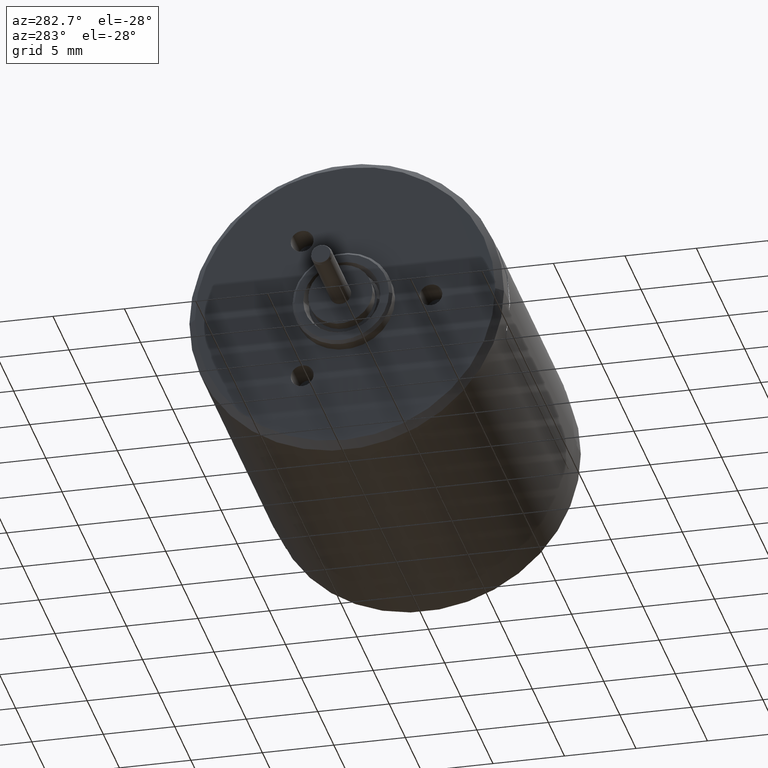
[diagram: clean part render]
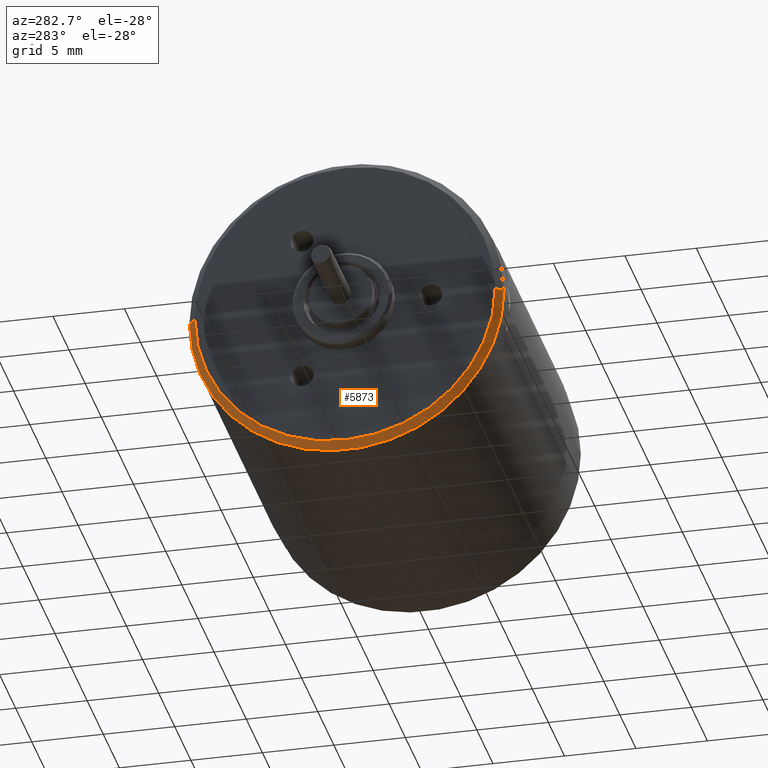
[diagram: same view with one face highlighted and labeled with its STEP entity id]
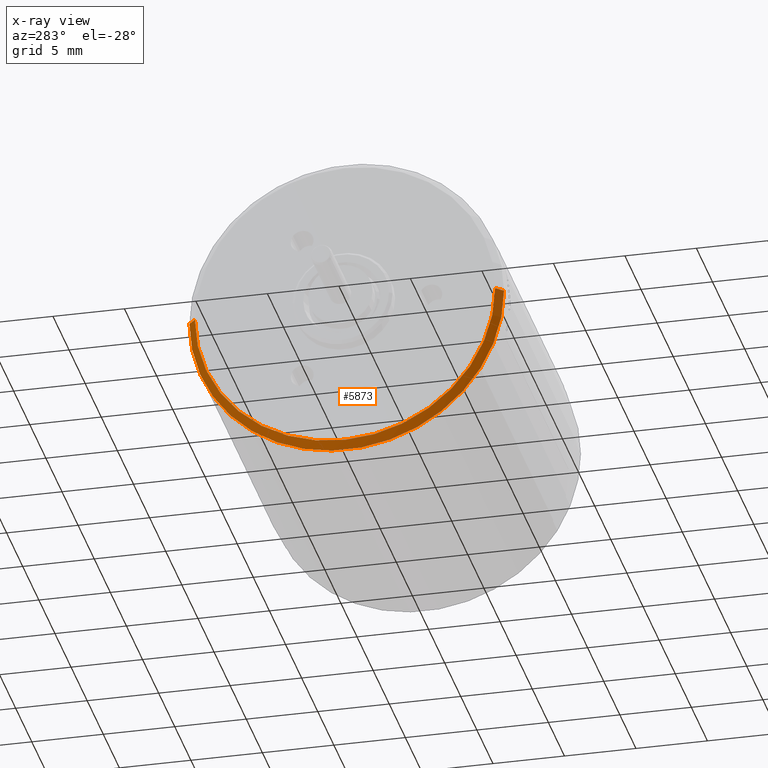
[diagram: x-ray of the same camera — body ghosted, the highlighted face saturated]
A machine part, auxiliary view. The second image highlights one B-rep face of the part: STEP entity #5873.
The next image is the same camera in x-ray: the body ghosted, the highlighted face saturated — about 0% of this face is hidden behind the body in this view.
In plain terms, the highlighted conical surface has half-angle 45 deg.
Its self-contained STEP definition (entity closure, byte-faithful):
#349=CARTESIAN_POINT('',(-1.59E1,1.252665587610E-14,-2.300296267738E-14));
#350=DIRECTION('',(1.E0,0.E0,0.E0));
#351=DIRECTION('',(0.E0,-1.E0,0.E0));
#352=AXIS2_PLACEMENT_3D('',#349,#350,#351);
#354=CARTESIAN_POINT('',(-1.59E1,1.252665587610E-14,-2.300296267738E-14));
#355=DIRECTION('',(1.E0,0.E0,0.E0));
#356=DIRECTION('',(0.E0,0.E0,-1.E0));
#357=AXIS2_PLACEMENT_3D('',#354,#355,#356);
#404=DIRECTION('',(7.071067811865E-1,-7.071067811865E-1,6.158305150629E-10));
#405=VECTOR('',#404,7.071067811689E-1);
#406=CARTESIAN_POINT('',(-1.59E1,-1.05E1,0.E0));
#407=LINE('',#406,#405);
#408=DIRECTION('',(-7.071067811865E-1,-7.071067811866E-1,6.158254072311E-10));
#409=VECTOR('',#408,7.071067811689E-1);
#410=CARTESIAN_POINT('',(-1.540000000001E1,1.099999999999E1,
-4.354624177498E-10));
#411=LINE('',#410,#409);
#430=CARTESIAN_POINT('',(-1.54E1,1.413242406229E-14,0.E0));
#431=DIRECTION('',(-1.E0,0.E0,0.E0));
#432=DIRECTION('',(0.E0,1.E0,0.E0));
#433=AXIS2_PLACEMENT_3D('',#430,#431,#432);
#4250=CARTESIAN_POINT('',(-1.54E1,1.1E1,0.E0));
#4251=CARTESIAN_POINT('',(-1.54E1,-1.1E1,0.E0));
#4252=VERTEX_POINT('',#4250);
#4253=VERTEX_POINT('',#4251);
#4254=CARTESIAN_POINT('',(-1.59E1,-1.05E1,0.E0));
#4255=VERTEX_POINT('',#4254);
#4256=CARTESIAN_POINT('',(-1.59E1,1.05E1,0.E0));
#4257=VERTEX_POINT('',#4256);
#4258=CARTESIAN_POINT('',(-1.59E1,1.452690549801E-14,-1.05E1));
#4259=VERTEX_POINT('',#4258);
#5860=CARTESIAN_POINT('',(-1.565E1,1.249603970613E-14,-2.300296267738E-14));
#5861=DIRECTION('',(1.E0,0.E0,0.E0));
#5862=DIRECTION('',(0.E0,0.E0,-1.E0));
#5863=AXIS2_PLACEMENT_3D('',#5860,#5861,#5862);
#5864=CONICAL_SURFACE('',#5863,1.075E1,4.5E1);
#5865=ORIENTED_EDGE('',*,*,#5818,.F.);
#5866=ORIENTED_EDGE('',*,*,#5816,.F.);
#5867=ORIENTED_EDGE('',*,*,#5855,.T.);
#5869=ORIENTED_EDGE('',*,*,#5868,.F.);
#5870=ORIENTED_EDGE('',*,*,#5851,.T.);
#5871=EDGE_LOOP('',(#5865,#5866,#5867,#5869,#5870));
#5872=FACE_OUTER_BOUND('',#5871,.F.);
#5873=ADVANCED_FACE('',(#5872),#5864,.T.);
#353=CIRCLE('',#352,1.05E1);
#358=CIRCLE('',#357,1.05E1);
#434=CIRCLE('',#433,1.1E1);
#5816=EDGE_CURVE('',#4255,#4259,#353,.T.);
#5818=EDGE_CURVE('',#4259,#4257,#358,.T.);
#5851=EDGE_CURVE('',#4252,#4257,#411,.T.);
#5855=EDGE_CURVE('',#4255,#4253,#407,.T.);
#5868=EDGE_CURVE('',#4252,#4253,#434,.T.);